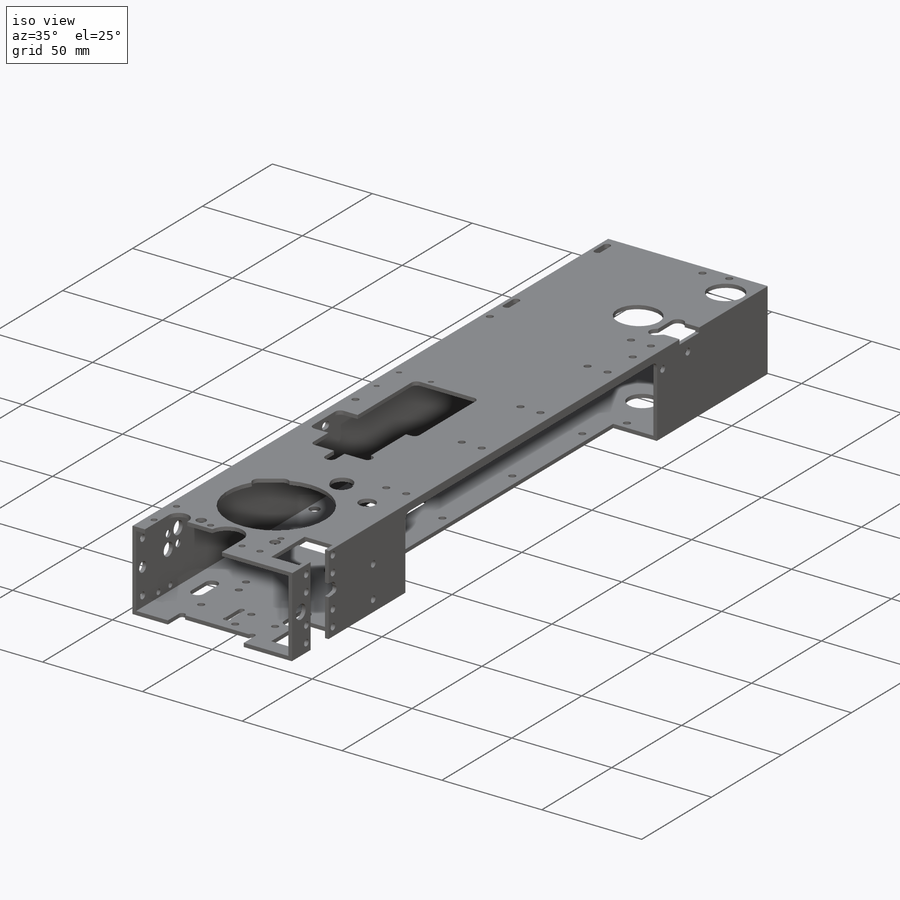
[diagram: iso view]
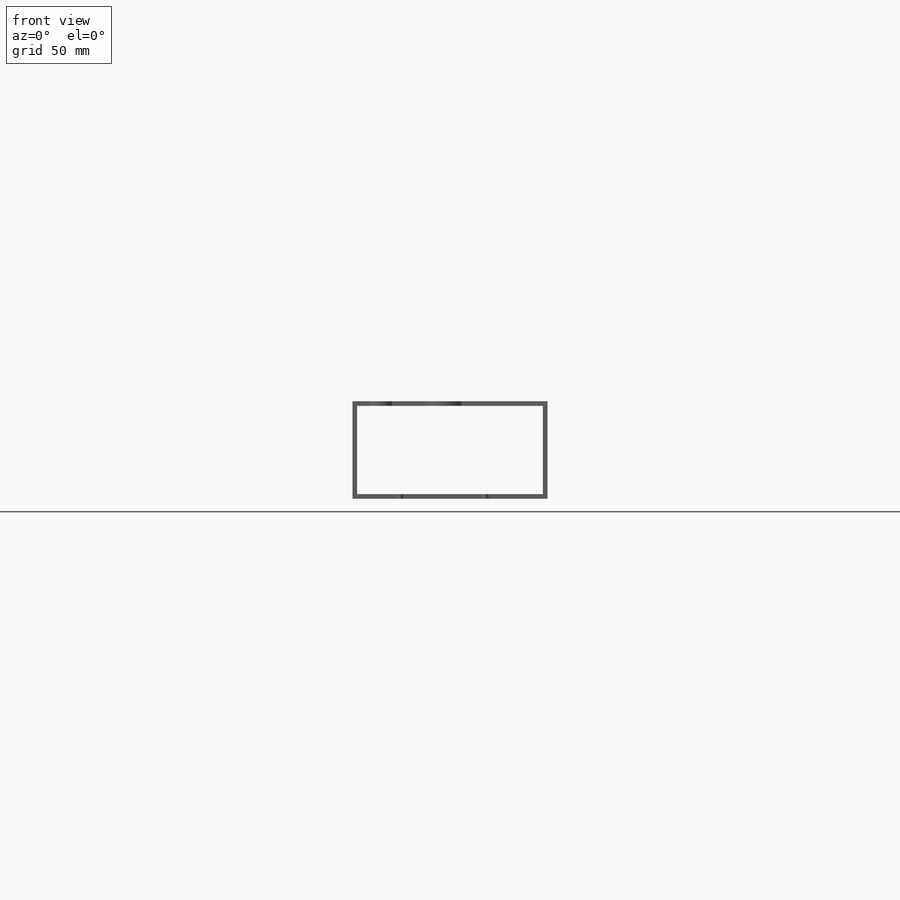
[diagram: front view]
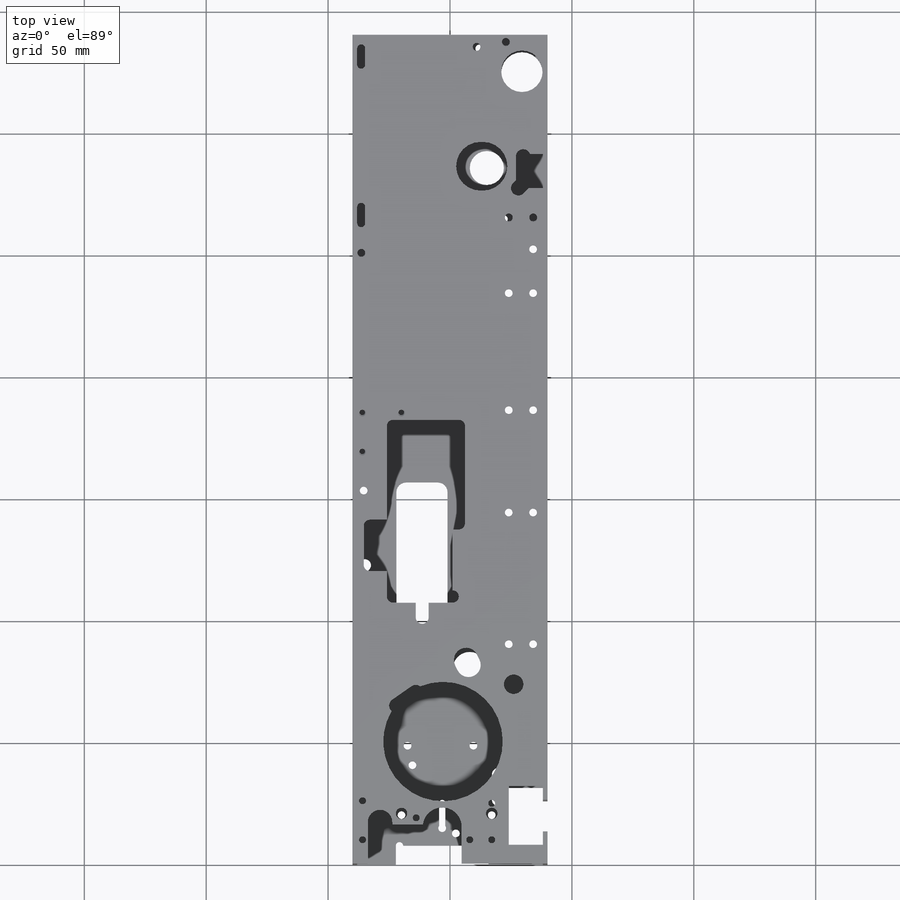
[diagram: top view]
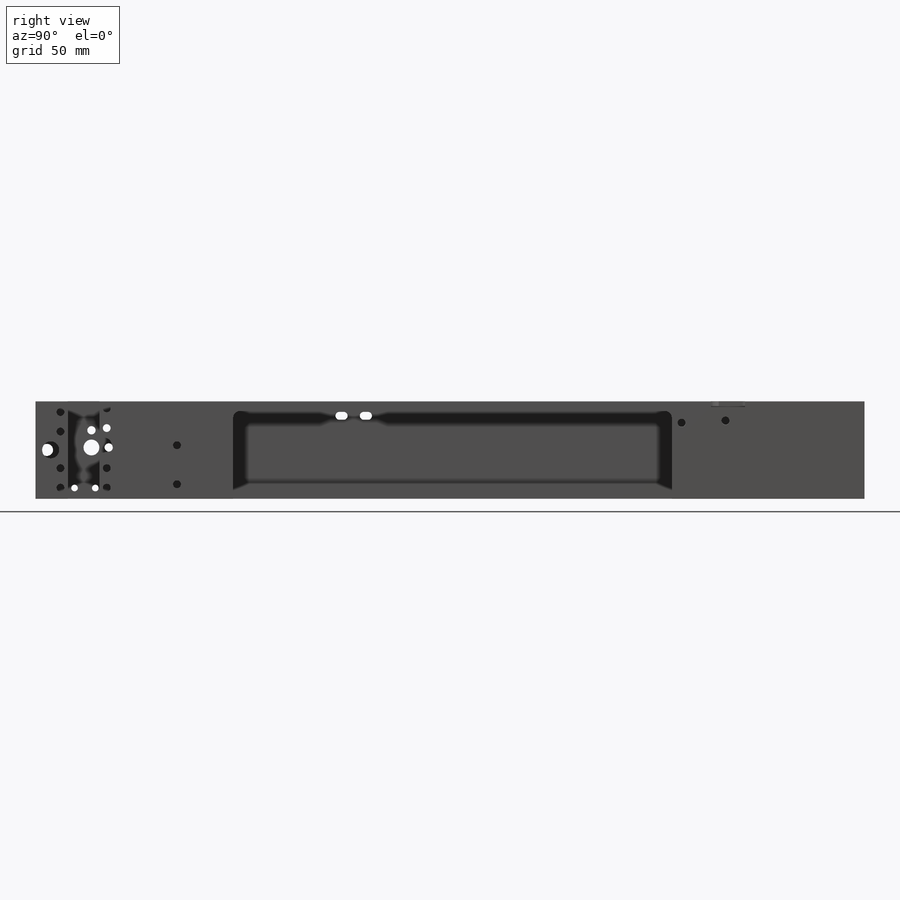
[diagram: right view]
SOLIDWORKS PART (.sldprt)
format: sldprt  version: not decoded by parser v0  size: 2,646,528 bytes
history: native  units: mm
features: sketch x56, cut_extrude x30, hole x12, plane x4, thread x3, material x1, extrude x1, fillet x1 (+12 scaffold rows collapsed)
feature tree (120):
  scaffold x12  (default folders/planes/origin — collapsed)
  material  "Материал <не указан>"
  plane  "Спереди"
  plane  "Сверху"
  plane  "Справа"
  sketch  "Эскиз1"  dims[D1=40.0mm D2=80.0mm D3=40.0mm D4=20.0mm D5=1.9mm]
  extrude  "Вытянуть1"  Depth=340mm
  fillet  "Скругление1"  Radius=0.25mm
  sketch  "Эскиз2"  dims[c1.D1=49.0mm c1.D2=50.0mm c1.D6=49.0mm c1.D7=49.0mm c1.D8=3.0mm c2.D2=44.0mm c2.D3=50.0mm c2.D4=79.0mm c3.D2=41.0mm c3.D4=339.0mm c4.D4=70.0deg c4.D5=~5.127146mm c5.D5=55.0deg c5.D6=26.0mm c5.D7=26.0mm]
  cut_extrude  "Вырез-Вытянуть1"  [1 undecoded]
  sketch  "Эскиз124"  dims[c1.D1=3.2mm c1.D3=24.5mm c1.D2=34.8mm c2.D3=0.31mm]
  cut_extrude  "Метка_для_оси"  [1 undecoded]
  sketch  "Эскиз6"  dims[c1.D1=3.0mm c1.D3=3.0mm c1.D4=42.0mm c1.D5=42.0mm c1.D8=42.0mm c1.D9=42.0mm c1.D2=~7.166566mm c2.D2=90.0deg c3.D2=8.0mm c3.D4=22.0mm c3.D5=20.0mm c3.D6=6.1mm c3.D7=16.0mm c3.D8=10.0mm c3.D9=7.5mm c3.D10=16.0mm c3.D11=6.1mm]
  cut_extrude  "Вырез-Вытянуть4"  [1 undecoded]
  sketch  "Эскиз7"  dims[c1.D5=4.0mm c1.D6=4.0mm c1.D4=3.0mm c1.D1=127.0mm c1.D2=22.0mm c1.D3=65.0mm c2.D4=4.0mm c2.D1=67.0mm c2.D2=36.0mm c2.D3=180.0mm c3.D1=31.0mm]
  cut_extrude  "Вырез-Вытянуть5"  Depth=22mm
  plane  "Плоскость1"
  sketch  "Эскиз53"  dims[c1.D1=~18.927604mm c1.D2=~18.927604mm c1.D3=17.0mm c2.D2=17.0mm c2.D1=8.5mm c3.D2=17.0mm c3.D1=9.0mm c4.D2=281.0mm c4.D1=8.0mm c4.D3=10.5mm c5.D2=15.0mm]
  cut_extrude  "Вырез-Вытянуть10"  [1 undecoded]
  sketch  "Эскиз83"  dims[c1.D6=2.0mm c1.D2=3.0mm c1.D1=6.0mm c2.D2=18.0mm c2.D3=14.0mm c2.D4=13.0mm c2.D5=48.0mm c2.D7=3.0mm c3.D4=16.0mm c3.D5=14.0mm c3.D1=12.0mm c3.D3=13.0mm c3.D6=~1.750313mm c4.D6=45.0deg c4.D8=2.0mm]
  cut_extrude  "Вырез-Вытянуть29"  Depth=2.5mm
  hole  "Отв. Ø3.2 (справа)"  [1 undecoded]
  sketch  "Эскиз60"  dims[c1.D1=275.0mm c1.D2=8.0mm c2.D1=6.0mm c2.D3=4.0mm c2.D4=7.0mm c3.D1=22.0mm]
  sketch  "Эскиз59"  dims[hole-wizard template sketch: 47 standard entries collapsed; hole parameters kept: c15.Глубина сквозного отверстия=1.9mm c15.Диаметр передней зенковки=3.4mm c15.D4=~3.666174mm c15.Угол передней зенковки=90.0deg c15.Диаметр задней зенковки=3.4mm c15.D6=~9.919017mm c15.Угол задней зенковки=90.0deg]
  sketch  "Эскиз65"  dims[c1.D1=~5.964222mm c1.D2=~5.964222mm c1.D3=5.0mm c2.D1=35.0mm c2.D2=30.3mm]
  cut_extrude  "Вырез-Вытянуть20"  [1 undecoded]
  sketch  "Эскиз66"  dims[c1.D1=8.0mm c1.D2=6.0mm c1.D3=7.0mm c2.D2=7.0mm c2.D5=7.0mm c2.D3=5.0mm c2.D7=24.5mm c3.D3=5.0mm c3.D7=24.5mm c3.D2=35.0mm c4.D3=9.0mm c4.D4=26.0mm c4.D2=35.0mm c4.D5=0.31mm c5.D4=16.0mm c5.D6=38.5mm c5.D7=33.0mm]
  cut_extrude  "Вырез-Вытянуть21"  [1 undecoded]
  hole  "Отв. под М3 (верх))"  [1 undecoded]
  sketch  "Эскиз68"  dims[c1.D13=50.0mm c1.D20=5.0mm c2.D13=3.1mm c2.D1=4.0mm c2.D2=9.0mm c2.D3=54.0mm c2.D4=60.0mm c2.D5=4.0mm c2.D6=10.0mm c2.D7=55.0mm c2.D8=43.0mm c2.D9=11.0mm c2.D10=56.5mm c2.D11=48.0mm c2.D12=16.5mm c3.D13=78.0mm c3.D14=29.7mm c3.D15=5.3mm c3.D16=2.0mm c3.D17=6.0mm c3.D18=7.0mm c3.D19=49.0mm c3.D4=108.0mm c3.D7=5.0mm c4.D17=8.5mm c4.D20=7.0mm c4.D21=6.0mm c4.D22=34.0mm c4.D23=28.0mm c4.D24=6.0mm c4.D10=43.0mm c4.D8=42.0mm c4.D9=3.0mm c5.D10=12.0mm c5.D12=5.0mm c5.D13=59.1mm c6.D12=60.5mm c6.D13=0.0mm c6.D14=80.0mm c7.D13=26.5mm c7.D15=59.5mm c7.D16=9.0mm c7.D12=97.5mm c8.D13=60.5mm]
  sketch  "Эскиз67"  dims[hole-wizard template sketch: 39 standard entries collapsed; hole parameters kept: c13.Диаметр отверстия=3.2mm c13.Глубина отверстия=1.9mm c13.Диаметр передней зенковки=3.4mm c13.D4=~33.297463mm c13.Угол передней зенковки=90.0deg c14.D5=~14.816244mm c14.Угол заточки сверла=118.0deg]
  hole  "Отв. под М3 (низ)"  [1 undecoded]
  sketch  "Эскиз72"  dims[c1.D15=50.0mm c1.D19=50.0mm c1.D26=24.5mm c1.D27=24.5mm c1.D1=50.0mm c1.D2=50.0mm c1.D3=12.0mm c1.D4=5.0mm c2.D3=7.0mm c2.D5=50.0mm c3.D3=15.0mm c3.D6=4.0mm c3.D7=16.0mm c3.D8=5.0mm c3.D9=11.0mm c3.D10=8.0mm c3.D11=9.0mm c3.D12=43.0mm c3.D13=9.0mm c3.D14=12.5mm c3.D15=33.0mm c3.D16=17.0mm c3.D17=20.0mm c3.D18=29.5mm c3.D19=46.0mm c3.D20=19.0mm c3.D21=13.0mm c3.D22=5.0mm c3.D23=6.5mm c4.D9=19.0mm c4.D10=11.5mm c4.D15=25.5mm c4.D24=5.3mm c4.D25=27.0mm c4.D26=12.5mm c4.D27=1.0mm]
  sketch  "Эскиз71"  dims[hole-wizard template sketch: 47 standard entries collapsed; hole parameters kept: c15.Глубина сквозного отверстия=1.9mm c15.Диаметр передней зенковки=3.4mm c15.D4=~3.666174mm c15.Угол передней зенковки=90.0deg c15.Диаметр задней зенковки=3.4mm c15.D6=~9.919017mm c15.Угол задней зенковки=90.0deg]
  sketch  "Эскиз90"  dims[D1=4.7mm D2=6.0mm]
  cut_extrude  "для отвертки_1"  [1 undecoded]
  sketch  "Эскиз79"  dims[c1.D3=2.5mm c1.D7=3.0mm c1.D14=3.0mm c1.D1=27.0mm c1.D2=75.0mm c1.D4=57.0mm c1.D5=23.0mm c1.D6=80.0mm c2.D7=76.0mm c2.D8=76.0mm c3.D7=~87.875804deg c3.D6=32.0mm c4.D7=45.0mm c4.D8=3.0mm c4.D9=6.0mm c4.D11=12.0mm c4.D12=12.0mm c4.D13=23.0mm c4.D14=9.5mm c4.D15=13.0mm c4.D16=21.0mm c4.D17=5.3mm c4.D18=6.0mm c4.D19=14.5mm c4.D10=2.0]
  cut_extrude  "Под_компрессор"  [1 undecoded]
  sketch  "Эскиз81"  dims[c1.D1=14.0mm c1.D2=10.0mm c1.D3=10.0mm c1.D4=14.0mm c1.D5=10.0mm c1.D6=10.0mm c2.D5=11.0mm c2.D6=49.0mm c2.D2=13.0mm c2.D7=3.0mm c2.D9=3.0mm c3.D7=5.0mm c3.D8=5.0mm c3.D9=5.0mm c3.D10=5.0mm c3.D2=34.0mm c3.D3=55.0mm c3.D5=48.0mm c3.D6=80.5mm c4.D5=30.0mm c4.D6=30.5mm c4.D3=23.0mm c4.D2=54.0mm c4.D8=6.0mm c4.D9=73.0mm c4.D10=32.0mm]
  cut_extrude  "Вырез-Вытянуть27"  [1 undecoded]
  sketch  "Эскиз82"  dims[c1.D1=19.0mm c1.D2=12.0mm c1.D4=10.0mm c1.D5=12.0mm c1.D6=12.0mm c2.D1=10.0mm c2.D5=11.0mm c2.D6=11.0mm c2.D4=11.0mm c3.D5=11.0mm c3.D7=11.0mm c3.D2=77.0mm c3.D3=49.5mm c4.D5=48.0mm c4.D6=80.5mm c4.D2=54.0mm c4.D3=21.0mm c4.D7=37.0mm c5.D5=2.0mm c5.D6=1.0mm c5.D2=53.0mm c5.D4=0.5mm c6.D5=1.0mm c6.D6=3.0mm c6.D7=1.5mm c6.D8=10.0mm]
  cut_extrude  "Вырез-Вытянуть28"  [1 undecoded]
  hole  "Отв. под M3 (слева)"  [1 undecoded]
  sketch  "Эскиз85"  dims[c1.D1=10.0mm c1.D2=5.0mm c1.D3=5.0mm c2.D2=5.0mm c2.D1=5.0mm c3.D2=3.0mm c3.D3=10.0mm c3.D4=20.0mm c3.D5=7.07mm c3.D6=7.07mm c3.D7=26.0mm c4.D2=13.0mm c4.D3=10.0mm c4.D7=5.0mm c4.D8=9.0mm c4.D9=45.3mm c5.D8=26.0mm c5.D10=65.0mm c5.D11=9.0mm c5.D12=4.0mm]
  sketch  "Эскиз84"  dims[hole-wizard template sketch: 47 standard entries collapsed; hole parameters kept: c15.Глубина сквозного отверстия=1.9mm c15.Диаметр передней зенковки=3.4mm c15.D4=~3.666174mm c15.Угол передней зенковки=90.0deg c15.Диаметр задней зенковки=3.4mm c15.D6=~9.919017mm c15.Угол задней зенковки=90.0deg]
  sketch  "Эскиз91"  dims[c1.D3=1.5mm c1.D4=4.0mm c1.D1=32.0mm c1.D2=10.0mm c2.D1=38.0mm c2.D2=8.0mm c2.D4=3.0mm c3.D1=38.0mm c3.D5=21.0mm c3.D6=2.5mm c3.D7=17.0mm c3.D8=67.0mm c4.D7=90.0mm c4.D6=18.0mm]
  cut_extrude  "Вырез-Вытянуть33"  [1 undecoded]
  hole  "Отверстие с зазором M41"  [1 undecoded]
  sketch  "Эскиз93"  dims[D1=5.0mm D2=55.0mm D3=26.0mm]
  sketch  "Эскиз92"  dims[hole-wizard template sketch: 46 standard entries collapsed; hole parameters kept: c15.Диаметр сквозного отверстия=4.4mm c15.Глубина сквозного отверстия=2.0mm c15.Диаметр передней зенковки=4.8mm c15.D4=~3.666174mm c15.Угол передней зенковки=90.0deg c15.Диаметр задней зенковки=4.8mm c15.D6=~9.919017mm c15.Угол задней зенковки=90.0deg]
  hole  "Отверстие с зазором M42"  [1 undecoded]
  sketch  "Эскиз95"
  sketch  "Эскиз94"  dims[hole-wizard template sketch: 39 standard entries collapsed; hole parameters kept: c13.Диаметр отверстия=4.4mm c13.Глубина отверстия=2.0mm c13.Диаметр передней зенковки=4.8mm c13.D4=~33.297463mm c13.Угол передней зенковки=90.0deg c14.D5=~14.816244mm c14.Угол заточки сверла=118.0deg]
  sketch  "Эскиз96"  dims[c1.D3=50.0mm c1.D1=3.0mm c1.D2=3.0mm c1.D5=3.0mm c2.D1=8.0mm c2.D2=20.0mm c2.D3=81.0mm c2.D4=31.0mm c3.D3=8.0mm c3.D4=20.0mm c3.D6=70.0mm]
  cut_extrude  "Вырез-Вытянуть34"  [1 undecoded]
  sketch  "Эскиз104"  dims[D1=11.0mm D2=6.0mm]
  cut_extrude  "Вырез-Вытянуть36"  [1 undecoded]
  hole  "под_4-40"  [1 undecoded]
  sketch  "Эскиз106"  dims[c1.D1=4.0mm c1.D2=8.0mm c1.D3=15.0mm c1.D4=16.0mm c2.D1=23.0mm c2.D2=4.0mm]
  sketch  "Эскиз105"  dims[hole-wizard template sketch: 59 standard entries collapsed; hole parameters kept: c18.Диаметр сквозного отверстия=3.2mm c18.Глубина сквозного отверстия=1.9mm]
  sketch  "Эскиз109"  dims[c1.D3=3.0mm c1.D7=1.7mm c1.D8=1.7mm c1.D9=1.7mm c1.D6=49.0mm c2.D9=49.0mm c2.D1=23.0mm c2.D2=12.0mm c2.D4=~16.167961mm c3.D4=18.0deg c3.D5=35.0mm c3.D6=8.0mm c3.D8=28.45mm c3.D9=14.22mm c3.D10=14.0mm c3.D11=24.0mm c4.D4=~15.749903mm c5.D4=18.0deg c5.D5=2.7mm c5.D6=19.5mm c5.D8=39.5mm c5.D9=29.0mm c5.D11=8.0mm c6.D11=~0.776572deg c7.D11=25.0mm c7.D12=7.5mm c7.D13=3.5mm]
  cut_extrude  "Вырез_под_HS-55"  [1 undecoded]
  hole  "Отв. резьба #2-56(1)"  [1 undecoded]
  sketch  "Эскиз111"  dims[D1=28.45mm D2=2.22mm D3=2.23mm]
  sketch  "Эскиз110"  dims[hole-wizard template sketch: 46 standard entries collapsed; hole parameters kept: c15.Диаметр резьбы=1.778mm c15.Глубина проходного сверла=40.0mm c15.Диаметр передней зенковки=2.286mm c15.D4=~3.666174mm c15.Угол передней зенковки=110.0deg c15.Диаметр задней зенковки=2.286mm c15.D6=~9.919017mm c15.Угол задней зенковки=110.0deg]
  sketch  "Эскиз113"  dims[c1.D1=12.0mm c1.D2=49.0mm c1.D3=49.0mm c2.D1=6.0mm c2.D2=49.0mm c2.D4=6.0mm c2.D3=6.0mm c3.D1=8.0mm c3.D2=~13.427633mm c4.D1=12.0mm c4.D2=28.5mm c4.D3=24.0mm c5.D2=23.5mm c5.D4=3.0mm c5.D3=29.0mm]
  cut_extrude  "Вырез_под_HD-1440A"  Depth=12mm
  sketch  "Эскиз112"  dims[c1.D1=3.0mm c1.D6=3.0mm c1.D7=3.0mm c1.D2=12.0mm c1.D3=9.0mm c1.D4=5.0mm c1.D5=32.0mm c2.D2=6.0mm c2.D3=6.0mm c2.D1=10.0mm c2.D4=19.0mm c2.D5=4.0mm c3.D1=10.0mm c3.D8=11.0mm]
  cut_extrude  "Вырез_под_шторку"  Depth=2.5mm
  hole  "#4-40 для переключателя"  [1 undecoded]
  sketch  "Эскиз115"  dims[c1.D1=9.0mm c1.D2=22.0mm c1.D3=31.3mm c2.D1=22.0mm c2.D2=9.0mm c2.D4=14.0mm c2.D5=11.0mm c2.D6=16.0mm c2.D7=22.0mm c2.D8=9.0mm c2.D9=15.0mm]
  sketch  "Эскиз114"  dims[hole-wizard template sketch: 59 standard entries collapsed; hole parameters kept: c18.Диаметр резьбы=2.8448mm c18.Глубина проходного сверла=1.9mm]
  sketch  "Эскиз116"  dims[c1.D4=2.5mm c1.D5=2.5mm c1.D7=2.5mm c1.D1=6.5mm c1.D2=13.0mm c1.D3=25.5mm c2.D5=4.0mm c2.D6=2.5mm c2.D7=2.5mm c2.D8=10.0mm c2.D3=9.0mm]
  cut_extrude  "Под_разъем_платы_датчиков"  Depth=2.5mm
  sketch  "Эскиз118"  dims[D1=13.0mm D2=23.8mm D3=24.0mm D4=14.0mm D5=1.9mm]
  cut_extrude  "Вырез-Вытянуть38"  [1 undecoded]
  hole  "отверстия Ø3.2"  [1 undecoded]
  sketch  "Эскиз120"  dims[c1.D1=19.0mm c1.D2=31.0mm c1.D3=4.5mm c1.D4=2.5mm c1.D5=32.5mm c2.D1=19.0mm c2.D6=8.0mm c2.D7=8.0mm c2.D8=8.0mm]
  sketch  "Эскиз119"  dims[hole-wizard template sketch: 59 standard entries collapsed; hole parameters kept: c18.Диаметр сквозного отверстия=3.2mm c18.Глубина сквозного отверстия=1.9mm]
  sketch  "Эскиз121"  dims[c1.D1=3.0mm c1.D2=3.0mm c1.D3=3.0mm c2.D2=18.0mm c2.D3=2.0mm c2.D1=6.0mm]
  cut_extrude  "Вырез-Вытянуть44"  [1 undecoded]
  sketch  "Эскиз122"  dims[D1=7.0mm D2=7.0mm]
  cut_extrude  "Вырез-Вытянуть45"  [1 undecoded]
  sketch  "Эскиз123"  dims[D1=5.0mm D2=1.5mm]
  cut_extrude  "Вырез-Вытянуть46"  [1 undecoded]
  sketch  "Эскиз125"  dims[D1=10.0mm D2=3.3mm D3=65.0mm D4=9.0mm D5=1.9mm]
  cut_extrude  "Вырез-Вытянуть47"  Depth=2.5mm
  sketch  "Эскиз127"  dims[c1.D1=10.0mm c1.D2=75.5mm c1.D3=5.0mm c1.D4=5.0mm c1.D5=3.3mm c2.D3=6.0mm c2.D6=6.5mm c2.D7=5.0mm c2.D8=20.0mm]
  cut_extrude  "Вырез-Вытянуть48"  Depth=1mm
  cut_extrude  "Вырез-Вытянуть49"  [1 undecoded]
  sketch  "Эскиз127<3>"
  sketch  "Эскиз128"  dims[D1=6.0mm]
  sketch  "Эскиз129"  dims[c1.D2=3.2mm c1.D3=1.5mm c1.D1=2.5mm c2.D2=0.2mm c2.D3=10.0mm]
  cut_extrude  "паз_для_диафрагмы"  [1 undecoded]
  sketch  "Эскиз130"  dims[c1.D1=2.7mm c1.D3=3.3mm c1.D4=3.3mm c1.D2=2.5mm c2.D3=8.5mm c2.D4=16.0mm]
  cut_extrude  "Вырез-Вытянуть50"  [1 undecoded]
  sketch  "Эскиз131"  dims[c1.D1=6.0mm c1.D2=6.0mm c1.D3=6.0mm c1.D4=6.0mm c2.D2=16.0mm c2.D3=4.5mm c2.D4=28.1mm]
  cut_extrude  "Вырез-Вытянуть51"  [1 undecoded]
  hole  "4-40_для_SD"  [1 undecoded]
  sketch  "Эскиз133"  dims[D1=16.0mm D2=16.0mm D3=4.0mm D4=155.0mm]
  sketch  "Эскиз132"  dims[hole-wizard template sketch: 46 standard entries collapsed; hole parameters kept: c15.Диаметр проходного сверла=2.2606mm c15.Глубина проходного сверла=1.9mm c15.Диаметр передней зенковки=3.048mm c15.D4=~3.666174mm c15.Угол передней зенковки=110.0deg c15.Диаметр задней зенковки=3.048mm c15.D6=~9.919017mm c15.Угол задней зенковки=110.0deg]
  thread  "Отверстие резьбы4"  Diameter=2.8448mm  [1 undecoded]
  thread  "Отверстие резьбы5"  Diameter=2.8448mm  [1 undecoded]
  thread  "Отверстие резьбы6"  Diameter=2.8448mm  [1 undecoded]
  hole  "Зенковка для адаптера 5Ю"  [1 undecoded]
  sketch  "Эскиз135"  dims[c1.D1=3.2mm c1.D2=3.2mm c2.D1=7.07mm c2.D2=7.07mm c2.D3=7.07mm c2.D4=7.07mm]
  sketch  "Эскиз134"  dims[hole-wizard template sketch: 47 standard entries collapsed; hole parameters kept: c15.Глубина сквозного отверстия=1.9mm c15.Диаметр передней зенковки=6.0mm c15.D4=~3.666174mm c15.Угол передней зенковки=90.0deg c15.Диаметр задней зенковки=3.45mm c15.D6=~9.919017mm c15.Угол задней зенковки=90.0deg]
  sketch  "Эскиз136"  dims[D1=7.5mm]
  cut_extrude  "Вырез-Вытянуть52"  [1 undecoded]
decode coverage: 66 of 103 modeling features carry decoded parameters
note: ~ marks probable driven/reference dimensions
note: 38 parameter values undecoded
summary: no parameter record found for 35 features
note: suppression state not decoded; provenance and decode notes live in map.json
